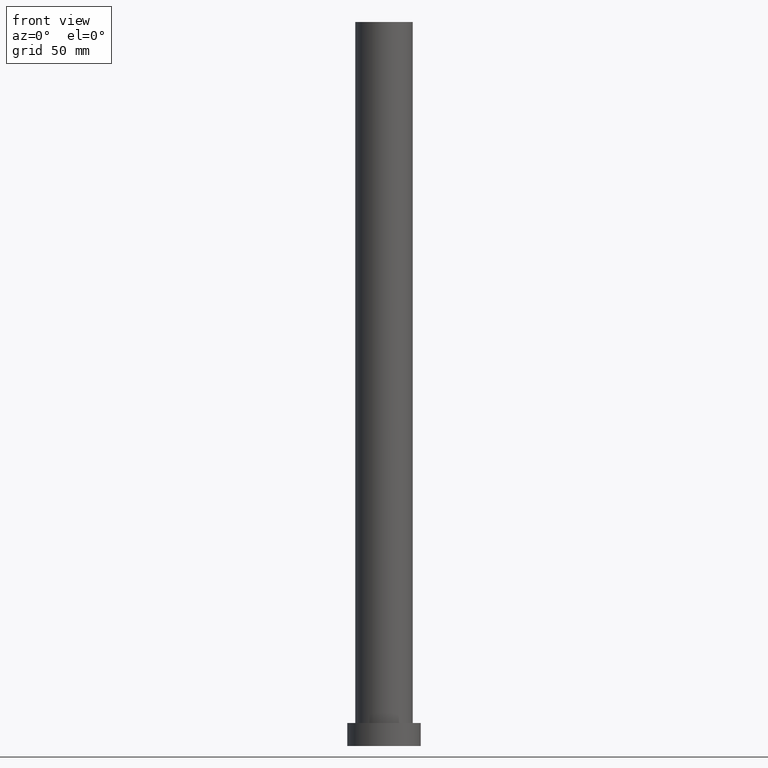
[diagram: clean part render]
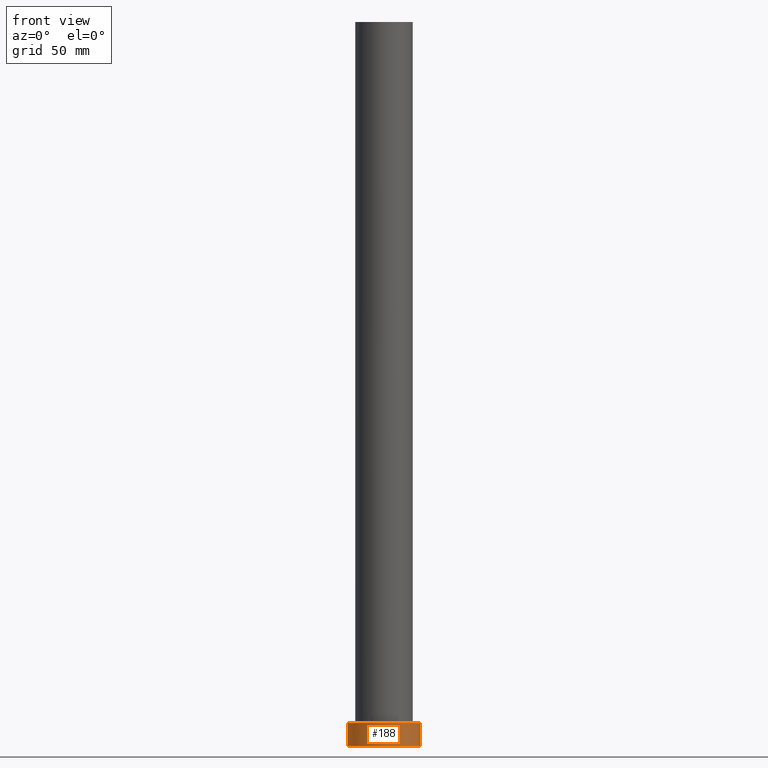
[diagram: same view with one face highlighted and labeled with its STEP entity id]
A machine part, front view. The second image highlights one B-rep face of the part: STEP entity #188.
In plain terms, the highlighted cylindrical surface (partial cylindrical patch) has radius 16 mm, axis along (-0, -0, -1).
Its self-contained STEP definition (entity closure, byte-faithful):
#3 = VERTEX_POINT ( 'NONE', #89 ) ;
#10 = DIRECTION ( 'NONE',  ( 0.000000000000000000, 0.000000000000000000, 1.000000000000000000 ) ) ;
#13 = EDGE_CURVE ( 'NONE', #167, #3, #151, .T. ) ;
#16 = VECTOR ( 'NONE', #219, 1000.000000000000000 ) ;
#23 = EDGE_CURVE ( 'NONE', #160, #169, #209, .T. ) ;
#35 = CARTESIAN_POINT ( 'NONE',  ( -16.00000000000000000, 0.000000000000000000, 10.00000000000000000 ) ) ;
#43 = AXIS2_PLACEMENT_3D ( 'NONE', #141, #123, #242 ) ;
#47 = AXIS2_PLACEMENT_3D ( 'NONE', #174, #10, #248 ) ;
#70 = DIRECTION ( 'NONE',  ( 1.000000000000000000, 0.000000000000000000, 0.000000000000000000 ) ) ;
#71 = CARTESIAN_POINT ( 'NONE',  ( -16.00000000000000000, 0.000000000000000000, 10.00000000000000000 ) ) ;
#89 = CARTESIAN_POINT ( 'NONE',  ( 16.00000000000000000, 1.959434878635765131E-15, 0.000000000000000000 ) ) ;
#104 = ORIENTED_EDGE ( 'NONE', *, *, #235, .F. ) ;
#122 = FACE_OUTER_BOUND ( 'NONE', #146, .T. ) ;
#123 = DIRECTION ( 'NONE',  ( -0.000000000000000000, -0.000000000000000000, -1.000000000000000000 ) ) ;
#129 = EDGE_CURVE ( 'NONE', #169, #3, #156, .T. ) ;
#131 = ORIENTED_EDGE ( 'NONE', *, *, #13, .F. ) ;
#140 = DIRECTION ( 'NONE',  ( -0.000000000000000000, -0.000000000000000000, -1.000000000000000000 ) ) ;
#141 = CARTESIAN_POINT ( 'NONE',  ( 0.000000000000000000, 0.000000000000000000, 10.00000000000000000 ) ) ;
#146 = EDGE_LOOP ( 'NONE', ( #131, #104, #237, #198 ) ) ;
#151 = LINE ( 'NONE', #176, #202 ) ;
#154 = CARTESIAN_POINT ( 'NONE',  ( -16.00000000000000000, 0.000000000000000000, 0.000000000000000000 ) ) ;
#156 = CIRCLE ( 'NONE', #47, 16.00000000000000000 ) ;
#160 = VERTEX_POINT ( 'NONE', #35 ) ;
#166 = AXIS2_PLACEMENT_3D ( 'NONE', #177, #253, #70 ) ;
#167 = VERTEX_POINT ( 'NONE', #211 ) ;
#169 = VERTEX_POINT ( 'NONE', #154 ) ;
#174 = CARTESIAN_POINT ( 'NONE',  ( 0.000000000000000000, 0.000000000000000000, 0.000000000000000000 ) ) ;
#176 = CARTESIAN_POINT ( 'NONE',  ( 16.00000000000000000, 1.959434878635765131E-15, 10.00000000000000000 ) ) ;
#177 = CARTESIAN_POINT ( 'NONE',  ( 0.000000000000000000, 0.000000000000000000, 10.00000000000000000 ) ) ;
#188 = ADVANCED_FACE ( 'NONE', ( #122 ), #226, .T. ) ;
#198 = ORIENTED_EDGE ( 'NONE', *, *, #129, .T. ) ;
#202 = VECTOR ( 'NONE', #140, 1000.000000000000000 ) ;
#209 = LINE ( 'NONE', #71, #16 ) ;
#211 = CARTESIAN_POINT ( 'NONE',  ( 16.00000000000000000, 1.959434878635765131E-15, 10.00000000000000000 ) ) ;
#219 = DIRECTION ( 'NONE',  ( -0.000000000000000000, -0.000000000000000000, -1.000000000000000000 ) ) ;
#226 = CYLINDRICAL_SURFACE ( 'NONE', #43, 16.00000000000000000 ) ;
#228 = CIRCLE ( 'NONE', #166, 16.00000000000000000 ) ;
#235 = EDGE_CURVE ( 'NONE', #160, #167, #228, .T. ) ;
#237 = ORIENTED_EDGE ( 'NONE', *, *, #23, .T. ) ;
#242 = DIRECTION ( 'NONE',  ( -1.000000000000000000, 0.000000000000000000, 0.000000000000000000 ) ) ;
#248 = DIRECTION ( 'NONE',  ( 1.000000000000000000, 0.000000000000000000, 0.000000000000000000 ) ) ;
#253 = DIRECTION ( 'NONE',  ( 0.000000000000000000, 0.000000000000000000, 1.000000000000000000 ) ) ;